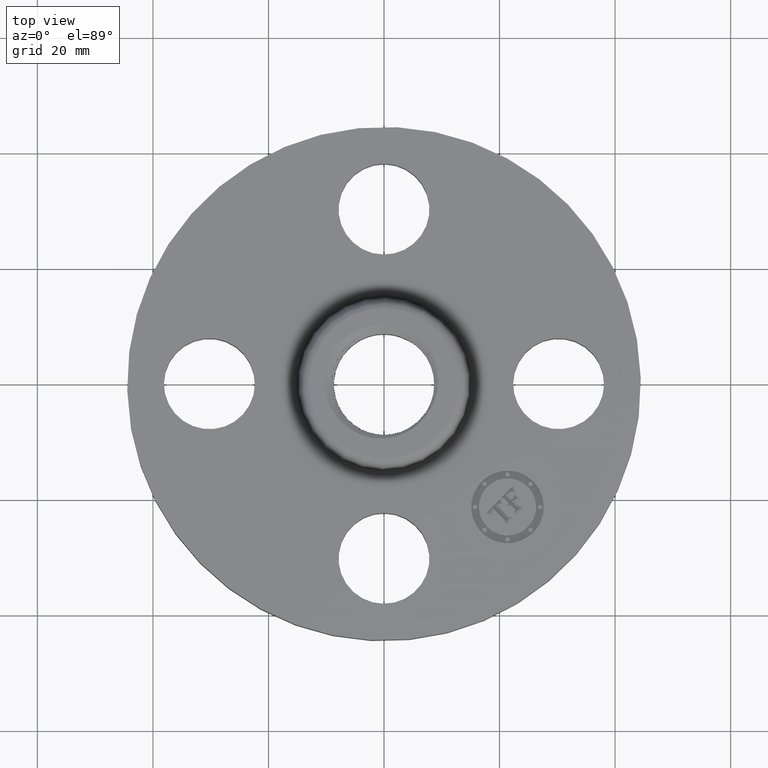
[diagram: clean part render]
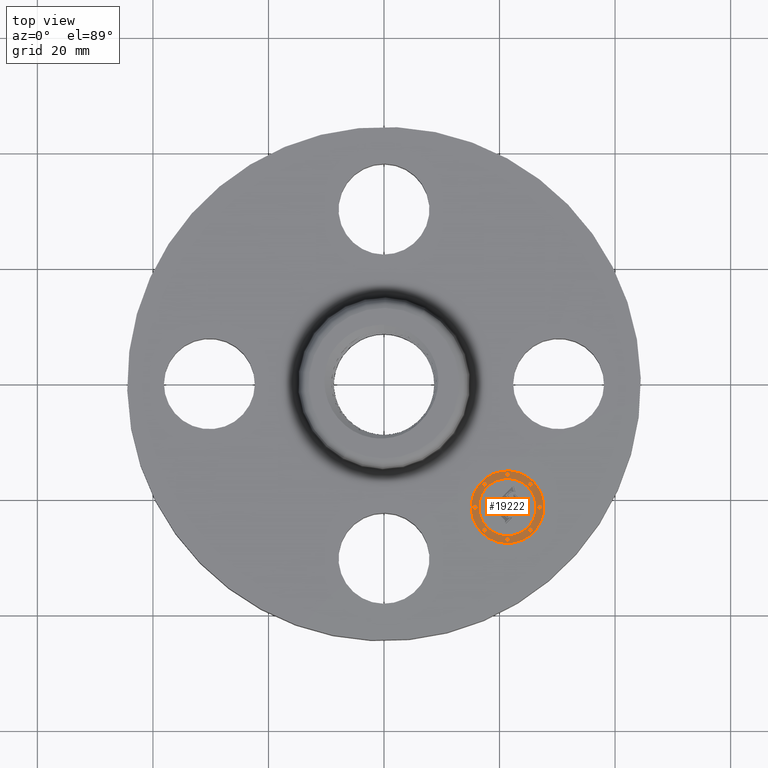
[diagram: same view with one face highlighted and labeled with its STEP entity id]
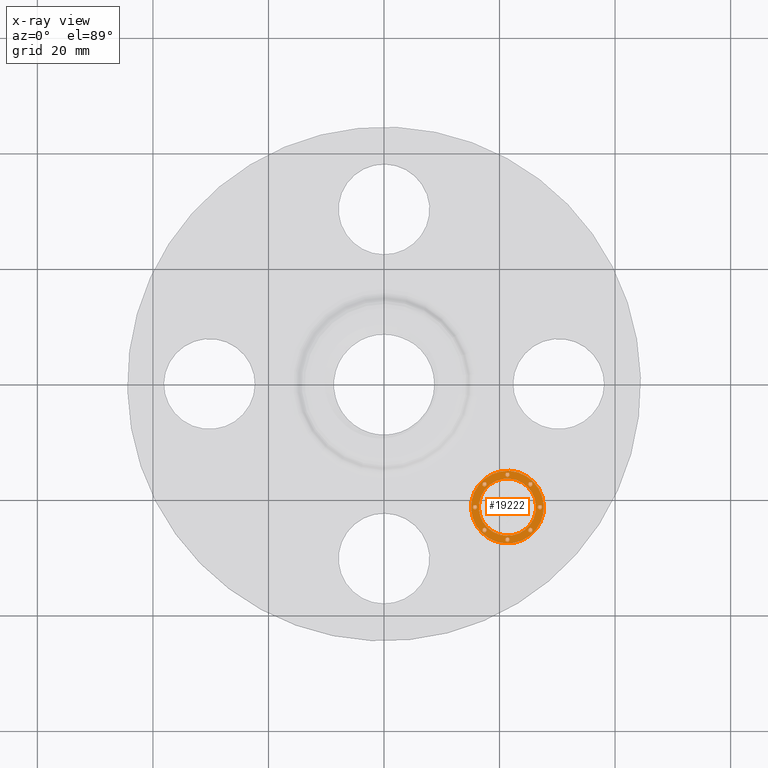
[diagram: x-ray of the same camera — body ghosted, the highlighted face saturated]
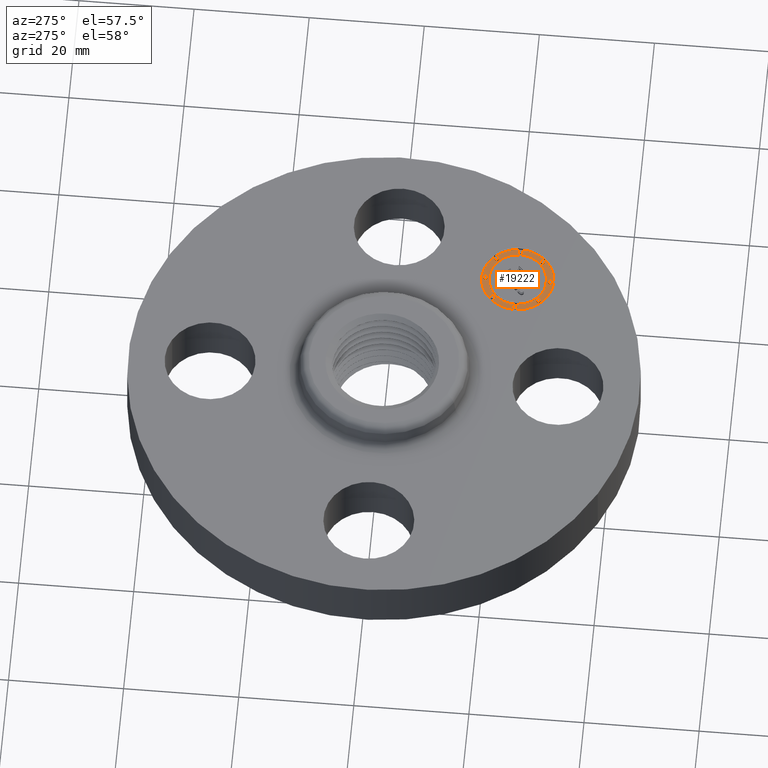
[diagram: same view with one face highlighted and labeled with its STEP entity id]
A machine part, top view. The second image highlights one B-rep face of the part: STEP entity #19222.
The next image is the same camera in x-ray: the body ghosted, the highlighted face saturated — about 0% of this face is hidden behind the body in this view.
A second angle (auxiliary view) of the same face is appended — the face is thin or edge-on in the first view.
In plain terms, the highlighted planar face has unit normal (0, -0, 1).
Its self-contained STEP definition (entity closure, byte-faithful):
#7873=AXIS2_PLACEMENT_3D('Plane Axis2P3D',#7870,#7871,#7872) ;
#19044=AXIS2_PLACEMENT_3D('Circle Axis2P3D',#19042,#19043,$) ;
#19053=AXIS2_PLACEMENT_3D('Circle Axis2P3D',#19051,#19052,$) ;
#19062=AXIS2_PLACEMENT_3D('Circle Axis2P3D',#19060,#19061,$) ;
#19071=AXIS2_PLACEMENT_3D('Circle Axis2P3D',#19069,#19070,$) ;
#19080=AXIS2_PLACEMENT_3D('Circle Axis2P3D',#19078,#19079,$) ;
#19089=AXIS2_PLACEMENT_3D('Circle Axis2P3D',#19087,#19088,$) ;
#19098=AXIS2_PLACEMENT_3D('Circle Axis2P3D',#19096,#19097,$) ;
#19107=AXIS2_PLACEMENT_3D('Circle Axis2P3D',#19105,#19106,$) ;
#19116=AXIS2_PLACEMENT_3D('Circle Axis2P3D',#19114,#19115,$) ;
#19125=AXIS2_PLACEMENT_3D('Circle Axis2P3D',#19123,#19124,$) ;
#19134=AXIS2_PLACEMENT_3D('Circle Axis2P3D',#19132,#19133,$) ;
#19143=AXIS2_PLACEMENT_3D('Circle Axis2P3D',#19141,#19142,$) ;
#19152=AXIS2_PLACEMENT_3D('Circle Axis2P3D',#19150,#19151,$) ;
#19161=AXIS2_PLACEMENT_3D('Circle Axis2P3D',#19159,#19160,$) ;
#19170=AXIS2_PLACEMENT_3D('Circle Axis2P3D',#19168,#19169,$) ;
#19179=AXIS2_PLACEMENT_3D('Circle Axis2P3D',#19177,#19178,$) ;
#19188=AXIS2_PLACEMENT_3D('Circle Axis2P3D',#19186,#19187,$) ;
#19197=AXIS2_PLACEMENT_3D('Circle Axis2P3D',#19195,#19196,$) ;
#19206=AXIS2_PLACEMENT_3D('Circle Axis2P3D',#19204,#19205,$) ;
#19215=AXIS2_PLACEMENT_3D('Circle Axis2P3D',#19213,#19214,$) ;
#7870=CARTESIAN_POINT('Axis2P3D Location',(0.,0.,0.365000000001)) ;
#19042=CARTESIAN_POINT('Axis2P3D Location',(0.841457069615,-0.841457069615,0.365000000001)) ;
#19046=CARTESIAN_POINT('Vertex',(1.01646599796,-0.666448141271,0.365000000001)) ;
#19048=CARTESIAN_POINT('Vertex',(0.666448141271,-1.01646599796,0.365000000001)) ;
#19051=CARTESIAN_POINT('Axis2P3D Location',(0.841457069615,-0.841457069615,0.365000000001)) ;
#19060=CARTESIAN_POINT('Axis2P3D Location',(0.841457069615,-0.841457069615,0.365000000001)) ;
#19064=CARTESIAN_POINT('Vertex',(0.703571247283,-0.979342891947,0.365000000001)) ;
#19066=CARTESIAN_POINT('Vertex',(0.979342891947,-0.703571247283,0.365000000001)) ;
#19069=CARTESIAN_POINT('Axis2P3D Location',(0.841457069615,-0.841457069615,0.365000000001)) ;
#19078=CARTESIAN_POINT('Axis2P3D Location',(0.685009694277,-0.685009694277,0.365000000001)) ;
#19082=CARTESIAN_POINT('Vertex',(0.674403092559,-0.695616295995,0.365000000001)) ;
#19084=CARTESIAN_POINT('Vertex',(0.695616295995,-0.674403092559,0.365000000001)) ;
#19087=CARTESIAN_POINT('Axis2P3D Location',(0.685009694277,-0.685009694277,0.365000000001)) ;
#19096=CARTESIAN_POINT('Axis2P3D Location',(0.997904444954,-0.685009694277,0.365000000001)) ;
#19100=CARTESIAN_POINT('Vertex',(0.987297843236,-0.695616295995,0.365000000001)) ;
#19102=CARTESIAN_POINT('Vertex',(1.00851104667,-0.674403092559,0.365000000001)) ;
#19105=CARTESIAN_POINT('Axis2P3D Location',(0.997904444954,-0.685009694277,0.365000000001)) ;
#19114=CARTESIAN_POINT('Axis2P3D Location',(0.841457069615,-0.620207069614,0.365000000001)) ;
#19118=CARTESIAN_POINT('Vertex',(0.830850467898,-0.630813671332,0.365000000001)) ;
#19120=CARTESIAN_POINT('Vertex',(0.852063671333,-0.609600467897,0.365000000001)) ;
#19123=CARTESIAN_POINT('Axis2P3D Location',(0.841457069615,-0.620207069614,0.365000000001)) ;
#19132=CARTESIAN_POINT('Axis2P3D Location',(0.997904444954,-0.997904444954,0.365000000001)) ;
#19136=CARTESIAN_POINT('Vertex',(0.987297843236,-1.00851104667,0.365000000001)) ;
#19138=CARTESIAN_POINT('Vertex',(1.00851104667,-0.987297843236,0.365000000001)) ;
#19141=CARTESIAN_POINT('Axis2P3D Location',(0.997904444954,-0.997904444954,0.365000000001)) ;
#19150=CARTESIAN_POINT('Axis2P3D Location',(1.06270706962,-0.841457069615,0.365000000001)) ;
#19154=CARTESIAN_POINT('Vertex',(1.0521004679,-0.852063671333,0.365000000001)) ;
#19156=CARTESIAN_POINT('Vertex',(1.07331367133,-0.830850467898,0.365000000001)) ;
#19159=CARTESIAN_POINT('Axis2P3D Location',(1.06270706962,-0.841457069615,0.365000000001)) ;
#19168=CARTESIAN_POINT('Axis2P3D Location',(0.685009694277,-0.997904444954,0.365000000001)) ;
#19172=CARTESIAN_POINT('Vertex',(0.695616295995,-0.987297843236,0.365000000001)) ;
#19174=CARTESIAN_POINT('Vertex',(0.674403092559,-1.00851104667,0.365000000001)) ;
#19177=CARTESIAN_POINT('Axis2P3D Location',(0.685009694277,-0.997904444954,0.365000000001)) ;
#19186=CARTESIAN_POINT('Axis2P3D Location',(0.620207069614,-0.841457069615,0.365000000001)) ;
#19190=CARTESIAN_POINT('Vertex',(0.630813671332,-0.830850467898,0.365000000001)) ;
#19192=CARTESIAN_POINT('Vertex',(0.609600467897,-0.852063671333,0.365000000001)) ;
#19195=CARTESIAN_POINT('Axis2P3D Location',(0.620207069614,-0.841457069615,0.365000000001)) ;
#19204=CARTESIAN_POINT('Axis2P3D Location',(0.841457069615,-1.06270706962,0.365000000001)) ;
#19208=CARTESIAN_POINT('Vertex',(0.852063671333,-1.0521004679,0.365000000001)) ;
#19210=CARTESIAN_POINT('Vertex',(0.830850467898,-1.07331367133,0.365000000001)) ;
#19213=CARTESIAN_POINT('Axis2P3D Location',(0.841457069615,-1.06270706962,0.365000000001)) ;
#7871=DIRECTION('Axis2P3D Direction',(0.,-0.,0.0393700787402)) ;
#7872=DIRECTION('Axis2P3D XDirection',(0.027838849653,0.027838849653,0.)) ;
#19043=DIRECTION('Axis2P3D Direction',(0.,-0.,0.0393700787402)) ;
#19052=DIRECTION('Axis2P3D Direction',(0.,-0.,0.0393700787402)) ;
#19061=DIRECTION('Axis2P3D Direction',(0.,-0.,0.0393700787402)) ;
#19070=DIRECTION('Axis2P3D Direction',(0.,-0.,0.0393700787402)) ;
#19079=DIRECTION('Axis2P3D Direction',(0.,-0.,0.0393700787402)) ;
#19088=DIRECTION('Axis2P3D Direction',(0.,-0.,0.0393700787402)) ;
#19097=DIRECTION('Axis2P3D Direction',(0.,-0.,0.0393700787402)) ;
#19106=DIRECTION('Axis2P3D Direction',(0.,-0.,0.0393700787402)) ;
#19115=DIRECTION('Axis2P3D Direction',(0.,-0.,0.0393700787402)) ;
#19124=DIRECTION('Axis2P3D Direction',(0.,-0.,0.0393700787402)) ;
#19133=DIRECTION('Axis2P3D Direction',(0.,-0.,0.0393700787402)) ;
#19142=DIRECTION('Axis2P3D Direction',(0.,-0.,0.0393700787402)) ;
#19151=DIRECTION('Axis2P3D Direction',(0.,-0.,0.0393700787402)) ;
#19160=DIRECTION('Axis2P3D Direction',(0.,-0.,0.0393700787402)) ;
#19169=DIRECTION('Axis2P3D Direction',(0.,-0.,0.0393700787402)) ;
#19178=DIRECTION('Axis2P3D Direction',(0.,-0.,0.0393700787402)) ;
#19187=DIRECTION('Axis2P3D Direction',(0.,-0.,0.0393700787402)) ;
#19196=DIRECTION('Axis2P3D Direction',(0.,-0.,0.0393700787402)) ;
#19205=DIRECTION('Axis2P3D Direction',(0.,-0.,0.0393700787402)) ;
#19214=DIRECTION('Axis2P3D Direction',(0.,-0.,0.0393700787402)) ;
#19057=ORIENTED_EDGE('',*,*,#19050,.T.) ;
#19058=ORIENTED_EDGE('',*,*,#19055,.T.) ;
#19075=ORIENTED_EDGE('',*,*,#19068,.F.) ;
#19076=ORIENTED_EDGE('',*,*,#19073,.F.) ;
#19093=ORIENTED_EDGE('',*,*,#19086,.F.) ;
#19094=ORIENTED_EDGE('',*,*,#19091,.F.) ;
#19111=ORIENTED_EDGE('',*,*,#19104,.F.) ;
#19112=ORIENTED_EDGE('',*,*,#19109,.F.) ;
#19129=ORIENTED_EDGE('',*,*,#19122,.F.) ;
#19130=ORIENTED_EDGE('',*,*,#19127,.F.) ;
#19147=ORIENTED_EDGE('',*,*,#19140,.F.) ;
#19148=ORIENTED_EDGE('',*,*,#19145,.F.) ;
#19165=ORIENTED_EDGE('',*,*,#19158,.F.) ;
#19166=ORIENTED_EDGE('',*,*,#19163,.F.) ;
#19183=ORIENTED_EDGE('',*,*,#19176,.F.) ;
#19184=ORIENTED_EDGE('',*,*,#19181,.F.) ;
#19201=ORIENTED_EDGE('',*,*,#19194,.F.) ;
#19202=ORIENTED_EDGE('',*,*,#19199,.F.) ;
#19219=ORIENTED_EDGE('',*,*,#19212,.F.) ;
#19220=ORIENTED_EDGE('',*,*,#19217,.F.) ;
#19077=FACE_BOUND('',#19074,.T.) ;
#19095=FACE_BOUND('',#19092,.T.) ;
#19113=FACE_BOUND('',#19110,.T.) ;
#19131=FACE_BOUND('',#19128,.T.) ;
#19149=FACE_BOUND('',#19146,.T.) ;
#19167=FACE_BOUND('',#19164,.T.) ;
#19185=FACE_BOUND('',#19182,.T.) ;
#19203=FACE_BOUND('',#19200,.T.) ;
#19221=FACE_BOUND('',#19218,.T.) ;
#19222=ADVANCED_FACE('PartBody',(#19059,#19077,#19095,#19113,#19131,#19149,#19167,#19185,#19203,#19221),#7874,.T.) ;
#19045=CIRCLE('generated circle',#19044,0.247500000001) ;
#19054=CIRCLE('generated circle',#19053,0.247500000001) ;
#19063=CIRCLE('generated circle',#19062,0.195000000001) ;
#19072=CIRCLE('generated circle',#19071,0.195000000001) ;
#19081=CIRCLE('generated circle',#19080,0.0150000000001) ;
#19090=CIRCLE('generated circle',#19089,0.0150000000001) ;
#19099=CIRCLE('generated circle',#19098,0.0150000000001) ;
#19108=CIRCLE('generated circle',#19107,0.0150000000001) ;
#19117=CIRCLE('generated circle',#19116,0.0150000000001) ;
#19126=CIRCLE('generated circle',#19125,0.0150000000001) ;
#19135=CIRCLE('generated circle',#19134,0.0150000000001) ;
#19144=CIRCLE('generated circle',#19143,0.0150000000001) ;
#19153=CIRCLE('generated circle',#19152,0.0150000000001) ;
#19162=CIRCLE('generated circle',#19161,0.0150000000001) ;
#19171=CIRCLE('generated circle',#19170,0.0150000000001) ;
#19180=CIRCLE('generated circle',#19179,0.0150000000001) ;
#19189=CIRCLE('generated circle',#19188,0.0150000000001) ;
#19198=CIRCLE('generated circle',#19197,0.0150000000001) ;
#19207=CIRCLE('generated circle',#19206,0.0150000000001) ;
#19216=CIRCLE('generated circle',#19215,0.0150000000001) ;
#19050=EDGE_CURVE('',#19047,#19049,#19045,.T.) ;
#19055=EDGE_CURVE('',#19049,#19047,#19054,.T.) ;
#19068=EDGE_CURVE('',#19065,#19067,#19063,.T.) ;
#19073=EDGE_CURVE('',#19067,#19065,#19072,.T.) ;
#19086=EDGE_CURVE('',#19083,#19085,#19081,.T.) ;
#19091=EDGE_CURVE('',#19085,#19083,#19090,.T.) ;
#19104=EDGE_CURVE('',#19101,#19103,#19099,.T.) ;
#19109=EDGE_CURVE('',#19103,#19101,#19108,.T.) ;
#19122=EDGE_CURVE('',#19119,#19121,#19117,.T.) ;
#19127=EDGE_CURVE('',#19121,#19119,#19126,.T.) ;
#19140=EDGE_CURVE('',#19137,#19139,#19135,.T.) ;
#19145=EDGE_CURVE('',#19139,#19137,#19144,.T.) ;
#19158=EDGE_CURVE('',#19155,#19157,#19153,.T.) ;
#19163=EDGE_CURVE('',#19157,#19155,#19162,.T.) ;
#19176=EDGE_CURVE('',#19173,#19175,#19171,.T.) ;
#19181=EDGE_CURVE('',#19175,#19173,#19180,.T.) ;
#19194=EDGE_CURVE('',#19191,#19193,#19189,.T.) ;
#19199=EDGE_CURVE('',#19193,#19191,#19198,.T.) ;
#19212=EDGE_CURVE('',#19209,#19211,#19207,.T.) ;
#19217=EDGE_CURVE('',#19211,#19209,#19216,.T.) ;
#19056=EDGE_LOOP('',(#19057,#19058)) ;
#19074=EDGE_LOOP('',(#19075,#19076)) ;
#19092=EDGE_LOOP('',(#19093,#19094)) ;
#19110=EDGE_LOOP('',(#19111,#19112)) ;
#19128=EDGE_LOOP('',(#19129,#19130)) ;
#19146=EDGE_LOOP('',(#19147,#19148)) ;
#19164=EDGE_LOOP('',(#19165,#19166)) ;
#19182=EDGE_LOOP('',(#19183,#19184)) ;
#19200=EDGE_LOOP('',(#19201,#19202)) ;
#19218=EDGE_LOOP('',(#19219,#19220)) ;
#19059=FACE_OUTER_BOUND('',#19056,.T.) ;
#7874=PLANE('',#7873) ;
#19047=VERTEX_POINT('',#19046) ;
#19049=VERTEX_POINT('',#19048) ;
#19065=VERTEX_POINT('',#19064) ;
#19067=VERTEX_POINT('',#19066) ;
#19083=VERTEX_POINT('',#19082) ;
#19085=VERTEX_POINT('',#19084) ;
#19101=VERTEX_POINT('',#19100) ;
#19103=VERTEX_POINT('',#19102) ;
#19119=VERTEX_POINT('',#19118) ;
#19121=VERTEX_POINT('',#19120) ;
#19137=VERTEX_POINT('',#19136) ;
#19139=VERTEX_POINT('',#19138) ;
#19155=VERTEX_POINT('',#19154) ;
#19157=VERTEX_POINT('',#19156) ;
#19173=VERTEX_POINT('',#19172) ;
#19175=VERTEX_POINT('',#19174) ;
#19191=VERTEX_POINT('',#19190) ;
#19193=VERTEX_POINT('',#19192) ;
#19209=VERTEX_POINT('',#19208) ;
#19211=VERTEX_POINT('',#19210) ;